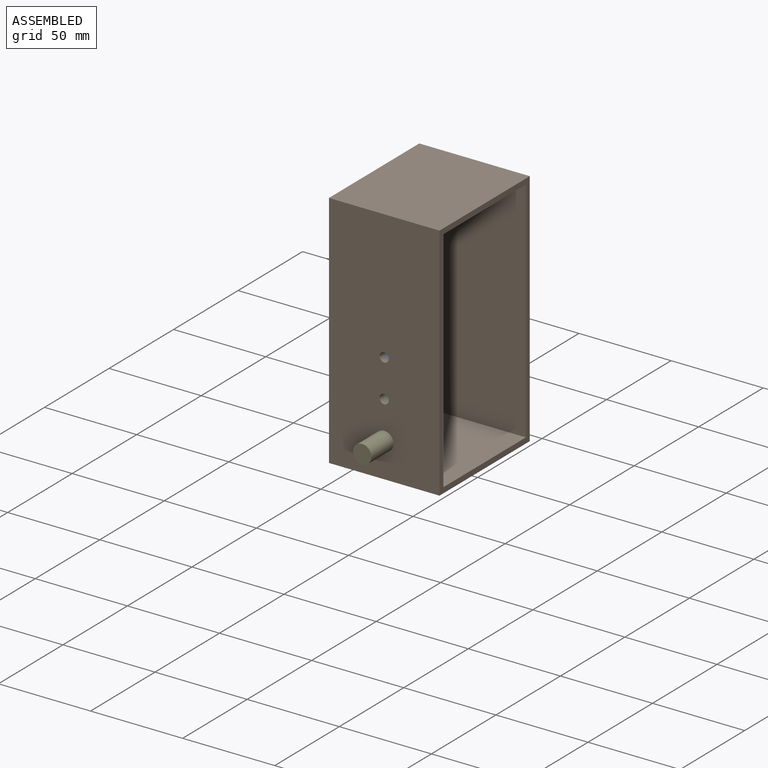
[diagram: assembled view]
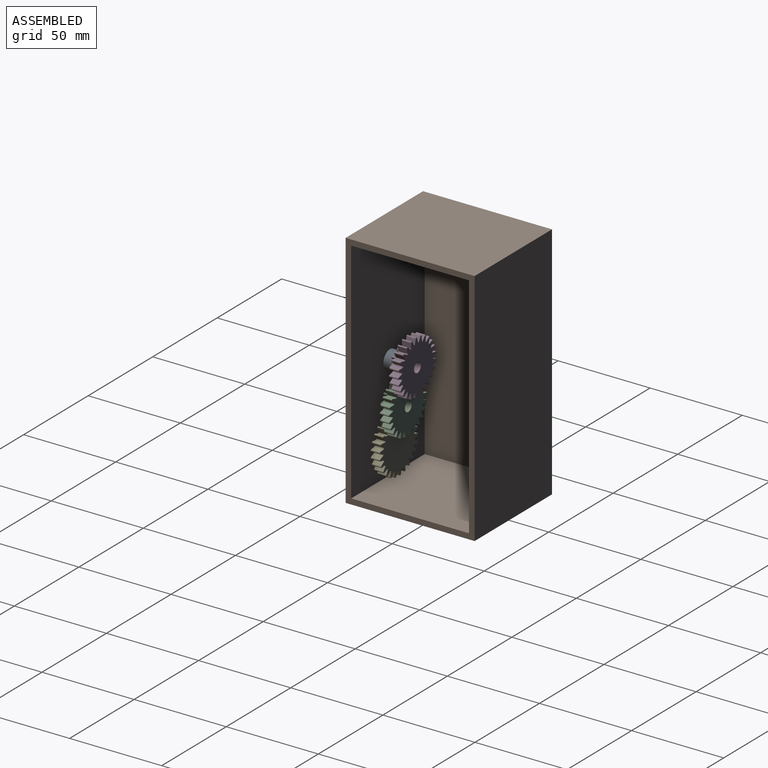
[diagram: assembled view, second angle]
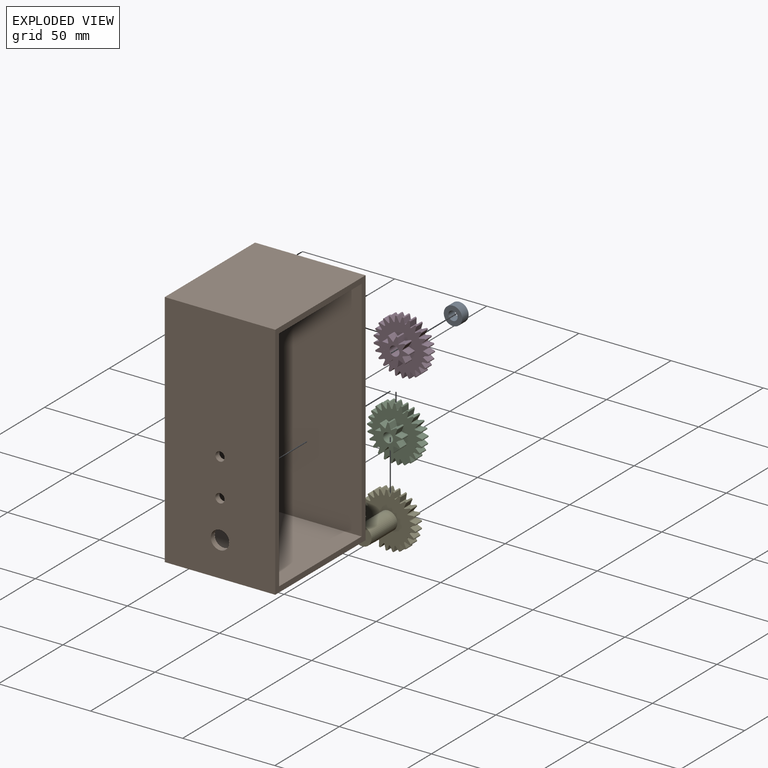
[diagram: exploded view]
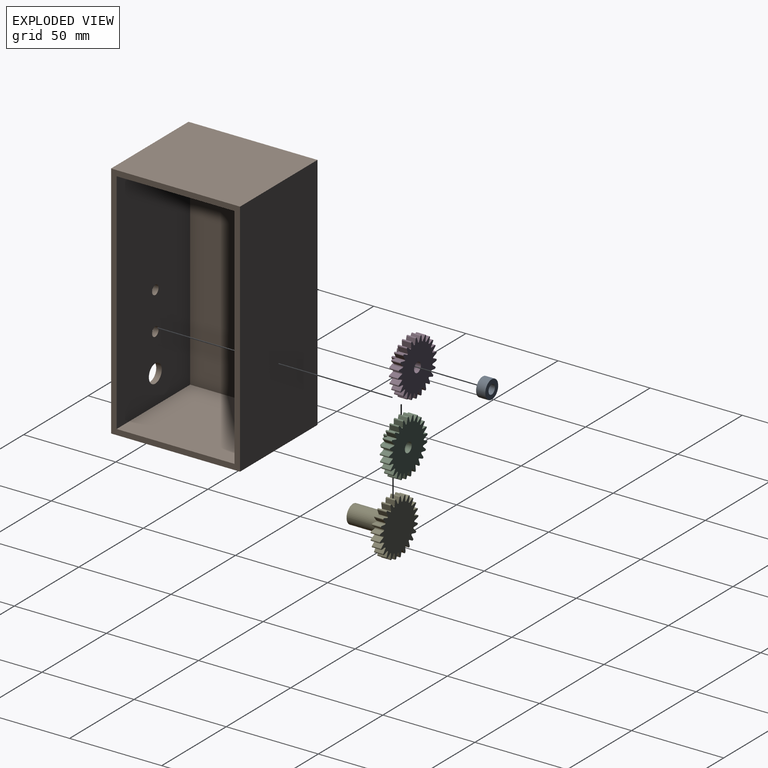
[diagram: exploded view, second angle]
ASSEMBLY  parts=5 mates=4
PART A: 4 faces, bbox 5x10x10 mm
  f0: cylinder r=2.5mm len=5mm, axis (-1,0,0), area 78.5mm2, adj f2,f3
  f1: cylinder r=5mm len=10mm, axis (-1,0,0), area 157.1mm2, adj f2,f3
  f2: plane 10x10mm, normal (1,0,0), area 58.9mm2, adj f0,f1
  f3: plane 10x10mm, normal (-1,0,0), area 58.9mm2, adj f0,f1
PART B: 14 faces, bbox 60x70x130 mm
  f0: plane 130x60mm, normal (0,-1,0), area 7682.2mm2, adj f1,f3,f4,f5,f11,f12,f13
  f1: plane 70x60mm, normal (0,0,-1), area 4200mm2, adj f0,f2,f4,f5
  f2: plane 130x60mm, normal (0,1,0), area 7800mm2, adj f1,f3,f4,f5
  f3: plane 70x60mm, normal (0,0,1), area 4200mm2, adj f0,f2,f4,f5
  f4: plane 130x70mm, normal (1,0,0), area 1164mm2, adj f0,f1,f2,f3,f6,f7,f8,f9
  f5: plane 130x70mm, normal (-1,0,0), area 9100mm2, adj f0,f1,f2,f3
  f6: plane 124x57mm, normal (0,1,0), area 6950.2mm2, adj f4,f7,f9,f10,f11,f12,f13
  f7: plane 64x57mm, normal (0,0,1), area 3648mm2, adj f4,f6,f8,f10
  f8: plane 124x57mm, normal (0,-1,0), area 7068mm2, adj f4,f7,f9,f10
  f9: plane 64x57mm, normal (0,0,-1), area 3648mm2, adj f4,f6,f8,f10
  f10: plane 124x64mm, normal (1,0,0), area 7936mm2, adj f6,f7,f8,f9
  f11: cylinder r=2.5mm len=5mm, axis (0,-1,0), area 47.1mm2, adj f0,f6
  f12: cylinder r=2.5mm len=5mm, axis (0,-1,0), area 47.1mm2, adj f0,f6
  f13: cylinder r=5mm len=10mm, axis (0,-1,0), area 94.2mm2, adj f0,f6
PART C: 140 faces, bbox 10x29.9x29.9 mm
  f0: plane 5x2.7mm, normal (0,-0.96,0.27), area 14.1mm2, adj f1,f99,f100,f101
  f1: cylinder r=12mm len=5mm, axis (-1,0,0), area 2.5mm2, adj f0,f2,f100,f101
  f2: plane 5x2.43mm, normal (0,0.86,0.5), area 14.1mm2, adj f1,f3,f100,f101
  f3: cylinder r=0.5mm len=5mm, axis (-1,0,0), area 6.5mm2, adj f2,f4,f100,f101
  f4: plane 5x2.81mm, normal (0,-1,0.03), area 14.1mm2, adj f3,f5,f100,f101
  f5: cylinder r=12mm len=5mm, axis (-1,0,0), area 2.5mm2, adj f4,f6,f100,f101
  f6: plane 5x2mm, normal (0,0.71,0.7), area 14.1mm2, adj f5,f7,f100,f101
  f7: cylinder r=0.5mm len=5mm, axis (-1,0,0), area 6.5mm2, adj f6,f8,f100,f101
  f8: plane 5x2.74mm, normal (0,-0.97,-0.22), area 14.1mm2, adj f7,f9,f100,f101
  f9: cylinder r=12mm len=5mm, axis (-1,0,0), area 2.5mm2, adj f8,f10,f100,f101
  f10: plane 5x2.41mm, normal (0,0.51,0.86), area 14.1mm2, adj f9,f11,f100,f101
  f11: cylinder r=0.5mm len=5mm, axis (-1,0,0), area 6.5mm2, adj f10,f12,f100,f101
  f12: plane 5x2.5mm, normal (0,-0.89,-0.46), area 14.1mm2, adj f11,f13,f100,f101
  f13: cylinder r=12mm len=5mm, axis (-1,0,0), area 2.5mm2, adj f12,f14,f100,f101
  f14: plane 5x2.7mm, normal (0,0.28,0.96), area 14.1mm2, adj f13,f15,f100,f101
  f15: cylinder r=0.5mm len=5mm, axis (-1,0,0), area 6.5mm2, adj f14,f16,f100,f101
  f16: plane 5x2.1mm, normal (0,-0.75,-0.66), area 14.1mm2, adj f15,f17,f100,f101
  f17: cylinder r=12mm len=5mm, axis (-1,0,0), area 2.5mm2, adj f16,f18,f100,f101
  f18: plane 5x2.81mm, normal (0,0.04,1), area 14.1mm2, adj f17,f19,f100,f101
  f19: cylinder r=0.5mm len=5mm, axis (-1,0,0), area 6.5mm2, adj f18,f20,f100,f101
  f20: plane 5x2.33mm, normal (0,-0.56,-0.83), area 14.1mm2, adj f19,f21,f100,f101
  f21: cylinder r=12mm len=5mm, axis (-1,0,0), area 2.5mm2, adj f20,f22,f100,f101
  f22: plane 5x2.75mm, normal (0,-0.21,0.98), area 14.1mm2, adj f21,f23,f100,f101
  f23: cylinder r=0.5mm len=5mm, axis (-1,0,0), area 6.5mm2, adj f22,f24,f100,f101
  f24: plane 5x2.65mm, normal (0,-0.33,-0.94), area 14.1mm2, adj f23,f25,f100,f101
  f25: cylinder r=12mm len=5mm, axis (-1,0,0), area 2.5mm2, adj f24,f26,f100,f101
  f26: plane 5x2.51mm, normal (0,-0.45,0.89), area 14.1mm2, adj f25,f27,f100,f101
  f27: cylinder r=0.5mm len=5mm, axis (-1,0,0), area 6.5mm2, adj f26,f28,f100,f101
  f28: plane 5x2.8mm, normal (0,-0.09,-1), area 14.1mm2, adj f27,f29,f100,f101
  f29: cylinder r=12mm len=5mm, axis (-1,0,0), area 2.5mm2, adj f28,f30,f100,f101
  f30: plane 5x2.12mm, normal (0,-0.66,0.75), area 14.1mm2, adj f29,f31,f100,f101
  f31: cylinder r=0.5mm len=5mm, axis (-1,0,0), area 6.5mm2, adj f30,f32,f100,f101
  f32: plane 5x2.77mm, normal (0,0.16,-0.99), area 14.1mm2, adj f31,f33,f100,f101
  f33: cylinder r=12mm len=5mm, axis (-1,0,0), area 2.5mm2, adj f32,f34,f100,f101
  f34: plane 5x2.32mm, normal (0,-0.82,0.57), area 14.1mm2, adj f33,f35,f100,f101
  f35: cylinder r=0.5mm len=5mm, axis (-1,0,0), area 6.5mm2, adj f34,f36,f100,f101
  f36: plane 5x2.57mm, normal (0,0.4,-0.92), area 14.1mm2, adj f35,f37,f100,f101
  f37: cylinder r=12mm len=5mm, axis (-1,0,0), area 2.5mm2, adj f36,f38,f100,f101
  f38: plane 5x2.64mm, normal (0,-0.94,0.34), area 14.1mm2, adj f37,f39,f100,f101
  f39: cylinder r=0.5mm len=5mm, axis (-1,0,0), area 6.5mm2, adj f38,f40,f100,f101
  f40: plane 5x2.21mm, normal (0,0.62,-0.79), area 14.1mm2, adj f39,f41,f100,f101
  f41: cylinder r=12mm len=5mm, axis (-1,0,0), area 2.5mm2, adj f40,f42,f100,f101
  f42: plane 5x2.8mm, normal (0,-1,0.1), area 14.1mm2, adj f41,f43,f100,f101
  f43: cylinder r=0.5mm len=5mm, axis (-1,0,0), area 6.5mm2, adj f42,f44,f100,f101
  f44: plane 5x2.23mm, normal (0,0.79,-0.61), area 14.1mm2, adj f43,f45,f100,f101
  f45: cylinder r=12mm len=5mm, axis (-1,0,0), area 2.5mm2, adj f44,f46,f100,f101
  f46: plane 5x2.78mm, normal (0,-0.99,-0.15), area 14.1mm2, adj f45,f47,f100,f101
  f47: cylinder r=0.5mm len=5mm, axis (-1,0,0), area 6.5mm2, adj f46,f48,f100,f101
  f48: plane 5x2.58mm, normal (0,0.92,-0.39), area 14.1mm2, adj f47,f49,f100,f101
  f49: cylinder r=12mm len=5mm, axis (-1,0,0), area 2.5mm2, adj f48,f50,f100,f101
  f50: plane 5x2.58mm, normal (0,-0.92,-0.39), area 14.1mm2, adj f49,f51,f100,f101
  f51: cylinder r=0.5mm len=5mm, axis (-1,0,0), area 6.5mm2, adj f50,f52,f100,f101
  f52: plane 5x2.78mm, normal (0,0.99,-0.15), area 14.1mm2, adj f51,f53,f100,f101
  f53: cylinder r=12mm len=5mm, axis (-1,0,0), area 2.5mm2, adj f52,f54,f100,f101
  f54: plane 5x2.23mm, normal (0,-0.79,-0.61), area 14.1mm2, adj f53,f55,f100,f101
  f55: cylinder r=0.5mm len=5mm, axis (-1,0,0), area 6.5mm2, adj f54,f56,f100,f101
  f56: plane 5x2.8mm, normal (0,1,0.1), area 14.1mm2, adj f55,f57,f100,f101
  f57: cylinder r=12mm len=5mm, axis (-1,0,0), area 2.5mm2, adj f56,f58,f100,f101
  f58: plane 5x2.21mm, normal (0,-0.62,-0.79), area 14.1mm2, adj f57,f59,f100,f101
  f59: cylinder r=0.5mm len=5mm, axis (-1,0,0), area 6.5mm2, adj f58,f60,f100,f101
  f60: plane 5x2.64mm, normal (0,0.94,0.34), area 14.1mm2, adj f59,f61,f100,f101
  f61: cylinder r=12mm len=5mm, axis (-1,0,0), area 2.5mm2, adj f60,f62,f100,f101
  f62: plane 5x2.57mm, normal (0,-0.4,-0.92), area 14.1mm2, adj f61,f63,f100,f101
  f63: cylinder r=0.5mm len=5mm, axis (-1,0,0), area 6.5mm2, adj f62,f64,f100,f101
  f64: plane 5x2.32mm, normal (0,0.82,0.57), area 14.1mm2, adj f63,f65,f100,f101
  f65: cylinder r=12mm len=5mm, axis (-1,0,0), area 2.5mm2, adj f64,f66,f100,f101
  f66: plane 5x2.77mm, normal (0,-0.16,-0.99), area 14.1mm2, adj f65,f67,f100,f101
  f67: cylinder r=0.5mm len=5mm, axis (-1,0,0), area 6.5mm2, adj f66,f68,f100,f101
  f68: plane 5x2.12mm, normal (0,0.66,0.75), area 14.1mm2, adj f67,f69,f100,f101
  f69: cylinder r=12mm len=5mm, axis (-1,0,0), area 2.5mm2, adj f68,f70,f100,f101
  f70: plane 5x2.8mm, normal (0,0.09,-1), area 14.1mm2, adj f69,f71,f100,f101
  f71: cylinder r=0.5mm len=5mm, axis (-1,0,0), area 6.5mm2, adj f70,f72,f100,f101
  f72: plane 5x2.51mm, normal (0,0.45,0.89), area 14.1mm2, adj f71,f73,f100,f101
  f73: cylinder r=12mm len=5mm, axis (-1,0,0), area 2.5mm2, adj f72,f74,f100,f101
  f74: plane 5x2.65mm, normal (0,0.33,-0.94), area 14.1mm2, adj f73,f75,f100,f101
  f75: cylinder r=0.5mm len=5mm, axis (-1,0,0), area 6.5mm2, adj f74,f76,f100,f101
  f76: plane 5x2.75mm, normal (0,0.21,0.98), area 14.1mm2, adj f75,f77,f100,f101
  f77: cylinder r=12mm len=5mm, axis (-1,0,0), area 2.5mm2, adj f76,f78,f100,f101
  f78: plane 5x2.33mm, normal (0,0.56,-0.83), area 14.1mm2, adj f77,f79,f100,f101
  f79: cylinder r=0.5mm len=5mm, axis (-1,0,0), area 6.5mm2, adj f78,f80,f100,f101
  f80: plane 5x2.81mm, normal (0,-0.04,1), area 14.1mm2, adj f79,f81,f100,f101
  f81: cylinder r=12mm len=5mm, axis (-1,0,0), area 2.5mm2, adj f80,f82,f100,f101
  f82: plane 5x2.1mm, normal (0,0.75,-0.66), area 14.1mm2, adj f81,f83,f100,f101
  f83: cylinder r=0.5mm len=5mm, axis (-1,0,0), area 6.5mm2, adj f82,f84,f100,f101
  f84: plane 5x2.7mm, normal (0,-0.28,0.96), area 14.1mm2, adj f83,f85,f100,f101
  f85: cylinder r=12mm len=5mm, axis (-1,0,0), area 2.5mm2, adj f84,f86,f100,f101
  f86: plane 5x2.5mm, normal (0,0.89,-0.46), area 14.1mm2, adj f85,f87,f100,f101
  f87: cylinder r=0.5mm len=5mm, axis (-1,0,0), area 6.5mm2, adj f86,f88,f100,f101
  f88: plane 5x2.41mm, normal (0,-0.51,0.86), area 14.1mm2, adj f87,f89,f100,f101
  f89: cylinder r=12mm len=5mm, axis (-1,0,0), area 2.5mm2, adj f88,f90,f100,f101
  f90: plane 5x2.74mm, normal (0,0.97,-0.22), area 14.1mm2, adj f89,f91,f100,f101
  f91: cylinder r=0.5mm len=5mm, axis (-1,0,0), area 6.5mm2, adj f90,f92,f100,f101
  f92: plane 5x2mm, normal (0,-0.71,0.7), area 14.1mm2, adj f91,f93,f100,f101
  f93: cylinder r=12mm len=5mm, axis (-1,0,0), area 2.5mm2, adj f92,f94,f100,f101
  f94: plane 5x2.81mm, normal (0,1,0.03), area 14.1mm2, adj f93,f95,f100,f101
  f95: cylinder r=0.5mm len=5mm, axis (-1,0,0), area 6.5mm2, adj f94,f96,f100,f101
  f96: plane 5x2.43mm, normal (0,-0.86,0.5), area 14.1mm2, adj f95,f97,f100,f101
  f97: cylinder r=12mm len=5mm, axis (-1,0,0), area 2.5mm2, adj f96,f98,f100,f101
  f98: plane 5x2.7mm, normal (0,0.96,0.27), area 14.1mm2, adj f97,f99,f100,f101
  f99: cylinder r=0.5mm len=5mm, axis (-1,0,0), area 6.5mm2, adj f0,f98,f100,f101
  f100: plane 29.94x29.89mm, normal (1,0,0), area 462.3mm2, adj f0,f1,f2,f3,f4,f5,f6,f7
  f101: plane 29.94x29.89mm, normal (-1,0,0), area 550.9mm2, adj f0,f1,f2,f3,f4,f5,f6,f7
  f102: plane 5x2.68mm, normal (0,-0.47,-0.88), area 15.2mm2, adj f100,f103,f137,f138
  f103: cylinder r=4.5mm len=5mm, axis (-1,0,0), area 1.3mm2, adj f100,f102,f104,f138
  f104: plane 5x2.25mm, normal (0,-0.74,0.67), area 15.2mm2, adj f100,f103,f105,f138
  f105: cylinder r=0.5mm len=5mm, axis (-1,0,0), area 6.3mm2, adj f100,f104,f106,f138
  f106: plane 5x2.96mm, normal (0,0.21,-0.98), area 15.2mm2, adj f100,f105,f107,f138
  f107: cylinder r=4.5mm len=5mm, axis (-1,0,0), area 1.3mm2, adj f100,f106,f108,f138
  f108: plane 5x3.03mm, normal (0,-1,0.03), area 15.2mm2, adj f100,f107,f109,f138
  f109: cylinder r=0.5mm len=5mm, axis (-1,0,0), area 6.3mm2, adj f100,f108,f110,f138
  f110: plane 5x2.39mm, normal (0,0.79,-0.62), area 15.2mm2, adj f100,f109,f111,f138
  f111: cylinder r=4.5mm len=5mm, axis (-1,0,0), area 1.3mm2, adj f100,f110,f112,f138
  f112: plane 5x2.39mm, normal (0,-0.79,-0.62), area 15.2mm2, adj f100,f111,f113,f138
  f113: cylinder r=0.5mm len=5mm, axis (-1,0,0), area 6.3mm2, adj f100,f112,f114,f138
  f114: plane 5x3.03mm, normal (0,1,0.03), area 15.2mm2, adj f100,f113,f115,f138
  f115: cylinder r=4.5mm len=5mm, axis (-1,0,0), area 1.3mm2, adj f100,f114,f116,f138
  f116: plane 5x2.96mm, normal (0,-0.21,-0.98), area 15.2mm2, adj f100,f115,f117,f138
  f117: cylinder r=0.5mm len=5mm, axis (-1,0,0), area 6.3mm2, adj f100,f116,f118,f138
  f118: plane 5x2.25mm, normal (0,0.74,0.67), area 15.2mm2, adj f100,f117,f119,f138
  f119: cylinder r=4.5mm len=5mm, axis (-1,0,0), area 1.3mm2, adj f100,f118,f120,f138
  f120: plane 5x2.68mm, normal (0,0.47,-0.88), area 15.2mm2, adj f100,f119,f121,f138
  f121: cylinder r=0.5mm len=5mm, axis (-1,0,0), area 6.3mm2, adj f100,f120,f122,f138
  f122: plane 5x3mm, normal (0,0.14,0.99), area 15.2mm2, adj f100,f121,f123,f138
  f123: cylinder r=4.5mm len=5mm, axis (-1,0,0), area 1.3mm2, adj f100,f122,f124,f138
  f124: plane 5x2.81mm, normal (0,0.93,-0.37), area 15.2mm2, adj f100,f123,f125,f138
  f125: cylinder r=0.5mm len=5mm, axis (-1,0,0), area 6.3mm2, adj f100,f124,f126,f138
  f126: plane 5x2.57mm, normal (0,-0.53,0.85), area 15.2mm2, adj f100,f125,f127,f138
  f127: cylinder r=4.5mm len=5mm, axis (-1,0,0), area 1.3mm2, adj f100,f126,f128,f138
  f128: plane 5x2.88mm, normal (0,0.95,0.31), area 15.2mm2, adj f100,f127,f129,f138
  f129: cylinder r=0.5mm len=5mm, axis (-1,0,0), area 6.3mm2, adj f100,f128,f130,f138
  f130: plane 5x2.88mm, normal (0,-0.95,0.31), area 15.2mm2, adj f100,f129,f131,f138
  f131: cylinder r=4.5mm len=5mm, axis (-1,0,0), area 1.3mm2, adj f100,f130,f132,f138
  f132: plane 5x2.57mm, normal (0,0.53,0.85), area 15.2mm2, adj f100,f131,f133,f138
  f133: cylinder r=0.5mm len=5mm, axis (-1,0,0), area 6.3mm2, adj f100,f132,f134,f138
  f134: plane 5x2.81mm, normal (0,-0.93,-0.37), area 15.2mm2, adj f100,f133,f135,f138
  f135: cylinder r=4.5mm len=5mm, axis (-1,0,0), area 1.3mm2, adj f100,f134,f136,f138
  f136: plane 5x3mm, normal (0,-0.14,0.99), area 15.2mm2, adj f100,f135,f137,f138
  f137: cylinder r=0.5mm len=5mm, axis (-1,0,0), area 6.3mm2, adj f100,f102,f136,f138
  f138: plane 14.79x14.58mm, normal (1,0,0), area 88.6mm2, adj f102,f103,f104,f105,f106,f107,f108,f109
  f139: cylinder r=2.66mm len=10mm, axis (1,0,0), area 167.4mm2, adj f101,f138
PART D: same geometry as C
PART E: 104 faces, bbox 25x29.9x29.9 mm
  f0: plane 5x2.7mm, normal (0,-0.96,0.27), area 14.1mm2, adj f1,f99,f100,f101
  f1: cylinder r=12mm len=5mm, axis (-1,0,0), area 2.5mm2, adj f0,f2,f100,f101
  f2: plane 5x2.43mm, normal (0,0.86,0.5), area 14.1mm2, adj f1,f3,f100,f101
  f3: cylinder r=0.5mm len=5mm, axis (-1,0,0), area 6.5mm2, adj f2,f4,f100,f101
  f4: plane 5x2.81mm, normal (0,-1,0.03), area 14.1mm2, adj f3,f5,f100,f101
  f5: cylinder r=12mm len=5mm, axis (-1,0,0), area 2.5mm2, adj f4,f6,f100,f101
  f6: plane 5x2mm, normal (0,0.71,0.7), area 14.1mm2, adj f5,f7,f100,f101
  f7: cylinder r=0.5mm len=5mm, axis (-1,0,0), area 6.5mm2, adj f6,f8,f100,f101
  f8: plane 5x2.74mm, normal (0,-0.97,-0.22), area 14.1mm2, adj f7,f9,f100,f101
  f9: cylinder r=12mm len=5mm, axis (-1,0,0), area 2.5mm2, adj f8,f10,f100,f101
  f10: plane 5x2.41mm, normal (0,0.51,0.86), area 14.1mm2, adj f9,f11,f100,f101
  f11: cylinder r=0.5mm len=5mm, axis (-1,0,0), area 6.5mm2, adj f10,f12,f100,f101
  f12: plane 5x2.5mm, normal (0,-0.89,-0.46), area 14.1mm2, adj f11,f13,f100,f101
  f13: cylinder r=12mm len=5mm, axis (-1,0,0), area 2.5mm2, adj f12,f14,f100,f101
  f14: plane 5x2.7mm, normal (0,0.28,0.96), area 14.1mm2, adj f13,f15,f100,f101
  f15: cylinder r=0.5mm len=5mm, axis (-1,0,0), area 6.5mm2, adj f14,f16,f100,f101
  f16: plane 5x2.1mm, normal (0,-0.75,-0.66), area 14.1mm2, adj f15,f17,f100,f101
  f17: cylinder r=12mm len=5mm, axis (-1,0,0), area 2.5mm2, adj f16,f18,f100,f101
  f18: plane 5x2.81mm, normal (0,0.04,1), area 14.1mm2, adj f17,f19,f100,f101
  f19: cylinder r=0.5mm len=5mm, axis (-1,0,0), area 6.5mm2, adj f18,f20,f100,f101
  f20: plane 5x2.33mm, normal (0,-0.56,-0.83), area 14.1mm2, adj f19,f21,f100,f101
  f21: cylinder r=12mm len=5mm, axis (-1,0,0), area 2.5mm2, adj f20,f22,f100,f101
  f22: plane 5x2.75mm, normal (0,-0.21,0.98), area 14.1mm2, adj f21,f23,f100,f101
  f23: cylinder r=0.5mm len=5mm, axis (-1,0,0), area 6.5mm2, adj f22,f24,f100,f101
  f24: plane 5x2.65mm, normal (0,-0.33,-0.94), area 14.1mm2, adj f23,f25,f100,f101
  f25: cylinder r=12mm len=5mm, axis (-1,0,0), area 2.5mm2, adj f24,f26,f100,f101
  f26: plane 5x2.51mm, normal (0,-0.45,0.89), area 14.1mm2, adj f25,f27,f100,f101
  f27: cylinder r=0.5mm len=5mm, axis (-1,0,0), area 6.5mm2, adj f26,f28,f100,f101
  f28: plane 5x2.8mm, normal (0,-0.09,-1), area 14.1mm2, adj f27,f29,f100,f101
  f29: cylinder r=12mm len=5mm, axis (-1,0,0), area 2.5mm2, adj f28,f30,f100,f101
  f30: plane 5x2.12mm, normal (0,-0.66,0.75), area 14.1mm2, adj f29,f31,f100,f101
  f31: cylinder r=0.5mm len=5mm, axis (-1,0,0), area 6.5mm2, adj f30,f32,f100,f101
  f32: plane 5x2.77mm, normal (0,0.16,-0.99), area 14.1mm2, adj f31,f33,f100,f101
  f33: cylinder r=12mm len=5mm, axis (-1,0,0), area 2.5mm2, adj f32,f34,f100,f101
  f34: plane 5x2.32mm, normal (0,-0.82,0.57), area 14.1mm2, adj f33,f35,f100,f101
  f35: cylinder r=0.5mm len=5mm, axis (-1,0,0), area 6.5mm2, adj f34,f36,f100,f101
  f36: plane 5x2.57mm, normal (0,0.4,-0.92), area 14.1mm2, adj f35,f37,f100,f101
  f37: cylinder r=12mm len=5mm, axis (-1,0,0), area 2.5mm2, adj f36,f38,f100,f101
  f38: plane 5x2.64mm, normal (0,-0.94,0.34), area 14.1mm2, adj f37,f39,f100,f101
  f39: cylinder r=0.5mm len=5mm, axis (-1,0,0), area 6.5mm2, adj f38,f40,f100,f101
  f40: plane 5x2.21mm, normal (0,0.62,-0.79), area 14.1mm2, adj f39,f41,f100,f101
  f41: cylinder r=12mm len=5mm, axis (-1,0,0), area 2.5mm2, adj f40,f42,f100,f101
  f42: plane 5x2.8mm, normal (0,-1,0.1), area 14.1mm2, adj f41,f43,f100,f101
  f43: cylinder r=0.5mm len=5mm, axis (-1,0,0), area 6.5mm2, adj f42,f44,f100,f101
  f44: plane 5x2.23mm, normal (0,0.79,-0.61), area 14.1mm2, adj f43,f45,f100,f101
  f45: cylinder r=12mm len=5mm, axis (-1,0,0), area 2.5mm2, adj f44,f46,f100,f101
  f46: plane 5x2.78mm, normal (0,-0.99,-0.15), area 14.1mm2, adj f45,f47,f100,f101
  f47: cylinder r=0.5mm len=5mm, axis (-1,0,0), area 6.5mm2, adj f46,f48,f100,f101
  f48: plane 5x2.58mm, normal (0,0.92,-0.39), area 14.1mm2, adj f47,f49,f100,f101
  f49: cylinder r=12mm len=5mm, axis (-1,0,0), area 2.5mm2, adj f48,f50,f100,f101
  f50: plane 5x2.58mm, normal (0,-0.92,-0.39), area 14.1mm2, adj f49,f51,f100,f101
  f51: cylinder r=0.5mm len=5mm, axis (-1,0,0), area 6.5mm2, adj f50,f52,f100,f101
  f52: plane 5x2.78mm, normal (0,0.99,-0.15), area 14.1mm2, adj f51,f53,f100,f101
  f53: cylinder r=12mm len=5mm, axis (-1,0,0), area 2.5mm2, adj f52,f54,f100,f101
  f54: plane 5x2.23mm, normal (0,-0.79,-0.61), area 14.1mm2, adj f53,f55,f100,f101
  f55: cylinder r=0.5mm len=5mm, axis (-1,0,0), area 6.5mm2, adj f54,f56,f100,f101
  f56: plane 5x2.8mm, normal (0,1,0.1), area 14.1mm2, adj f55,f57,f100,f101
  f57: cylinder r=12mm len=5mm, axis (-1,0,0), area 2.5mm2, adj f56,f58,f100,f101
  f58: plane 5x2.21mm, normal (0,-0.62,-0.79), area 14.1mm2, adj f57,f59,f100,f101
  f59: cylinder r=0.5mm len=5mm, axis (-1,0,0), area 6.5mm2, adj f58,f60,f100,f101
  f60: plane 5x2.64mm, normal (0,0.94,0.34), area 14.1mm2, adj f59,f61,f100,f101
  f61: cylinder r=12mm len=5mm, axis (-1,0,0), area 2.5mm2, adj f60,f62,f100,f101
  f62: plane 5x2.57mm, normal (0,-0.4,-0.92), area 14.1mm2, adj f61,f63,f100,f101
  f63: cylinder r=0.5mm len=5mm, axis (-1,0,0), area 6.5mm2, adj f62,f64,f100,f101
  f64: plane 5x2.32mm, normal (0,0.82,0.57), area 14.1mm2, adj f63,f65,f100,f101
  f65: cylinder r=12mm len=5mm, axis (-1,0,0), area 2.5mm2, adj f64,f66,f100,f101
  f66: plane 5x2.77mm, normal (0,-0.16,-0.99), area 14.1mm2, adj f65,f67,f100,f101
  f67: cylinder r=0.5mm len=5mm, axis (-1,0,0), area 6.5mm2, adj f66,f68,f100,f101
  f68: plane 5x2.12mm, normal (0,0.66,0.75), area 14.1mm2, adj f67,f69,f100,f101
  f69: cylinder r=12mm len=5mm, axis (-1,0,0), area 2.5mm2, adj f68,f70,f100,f101
  f70: plane 5x2.8mm, normal (0,0.09,-1), area 14.1mm2, adj f69,f71,f100,f101
  f71: cylinder r=0.5mm len=5mm, axis (-1,0,0), area 6.5mm2, adj f70,f72,f100,f101
  f72: plane 5x2.51mm, normal (0,0.45,0.89), area 14.1mm2, adj f71,f73,f100,f101
  f73: cylinder r=12mm len=5mm, axis (-1,0,0), area 2.5mm2, adj f72,f74,f100,f101
  f74: plane 5x2.65mm, normal (0,0.33,-0.94), area 14.1mm2, adj f73,f75,f100,f101
  f75: cylinder r=0.5mm len=5mm, axis (-1,0,0), area 6.5mm2, adj f74,f76,f100,f101
  f76: plane 5x2.75mm, normal (0,0.21,0.98), area 14.1mm2, adj f75,f77,f100,f101
  f77: cylinder r=12mm len=5mm, axis (-1,0,0), area 2.5mm2, adj f76,f78,f100,f101
  f78: plane 5x2.33mm, normal (0,0.56,-0.83), area 14.1mm2, adj f77,f79,f100,f101
  f79: cylinder r=0.5mm len=5mm, axis (-1,0,0), area 6.5mm2, adj f78,f80,f100,f101
  f80: plane 5x2.81mm, normal (0,-0.04,1), area 14.1mm2, adj f79,f81,f100,f101
  f81: cylinder r=12mm len=5mm, axis (-1,0,0), area 2.5mm2, adj f80,f82,f100,f101
  f82: plane 5x2.1mm, normal (0,0.75,-0.66), area 14.1mm2, adj f81,f83,f100,f101
  f83: cylinder r=0.5mm len=5mm, axis (-1,0,0), area 6.5mm2, adj f82,f84,f100,f101
  f84: plane 5x2.7mm, normal (0,-0.28,0.96), area 14.1mm2, adj f83,f85,f100,f101
  f85: cylinder r=12mm len=5mm, axis (-1,0,0), area 2.5mm2, adj f84,f86,f100,f101
  f86: plane 5x2.5mm, normal (0,0.89,-0.46), area 14.1mm2, adj f85,f87,f100,f101
  f87: cylinder r=0.5mm len=5mm, axis (-1,0,0), area 6.5mm2, adj f86,f88,f100,f101
  f88: plane 5x2.41mm, normal (0,-0.51,0.86), area 14.1mm2, adj f87,f89,f100,f101
  f89: cylinder r=12mm len=5mm, axis (-1,0,0), area 2.5mm2, adj f88,f90,f100,f101
  f90: plane 5x2.74mm, normal (0,0.97,-0.22), area 14.1mm2, adj f89,f91,f100,f101
  f91: cylinder r=0.5mm len=5mm, axis (-1,0,0), area 6.5mm2, adj f90,f92,f100,f101
  f92: plane 5x2mm, normal (0,-0.71,0.7), area 14.1mm2, adj f91,f93,f100,f101
  f93: cylinder r=12mm len=5mm, axis (-1,0,0), area 2.5mm2, adj f92,f94,f100,f101
  f94: plane 5x2.81mm, normal (0,1,0.03), area 14.1mm2, adj f93,f95,f100,f101
  f95: cylinder r=0.5mm len=5mm, axis (-1,0,0), area 6.5mm2, adj f94,f96,f100,f101
  f96: plane 5x2.43mm, normal (0,-0.86,0.5), area 14.1mm2, adj f95,f97,f100,f101
  f97: cylinder r=12mm len=5mm, axis (-1,0,0), area 2.5mm2, adj f96,f98,f100,f101
  f98: plane 5x2.7mm, normal (0,0.96,0.27), area 14.1mm2, adj f97,f99,f100,f101
  f99: cylinder r=0.5mm len=5mm, axis (-1,0,0), area 6.5mm2, adj f0,f98,f100,f101
  f100: plane 29.94x29.89mm, normal (1,0,0), area 494.6mm2, adj f0,f1,f2,f3,f4,f5,f6,f7
  f101: plane 29.94x29.89mm, normal (-1,0,0), area 573.2mm2, adj f0,f1,f2,f3,f4,f5,f6,f7
  f102: cylinder r=5mm len=20mm, axis (-1,0,0), area 628.3mm2, adj f100,f103
  f103: plane 10x10mm, normal (1,0,0), area 78.5mm2, adj f102
PLACE A rot(axis=(0.58,0.58,0.58),120deg) t=(14.98,9.29,70.05)mm
PLACE B t=(-15.02,11.26,19.02)mm
PLACE C rot(axis=(0,0,-1),90deg) t=(14.98,19.29,49.55)mm
PLACE D rot(axis=(-0.58,0.58,-0.58),120deg) t=(14.98,24.29,70.05)mm
PLACE E rot(axis=(0.58,-0.58,-0.58),120deg) t=(14.98,14.29,29.05)mm
MATE pin_slot D.f1 <-> A.f0  axis (0,-1,0) through (14.98,14.29,70.05)mm
MATE pin_slot C.f1 <-> B.f12  axis (0,-1,0) through (14.98,9.29,49.55)mm
MATE revolute E.f1 <-> B.f13  axis (0,1,0) through (14.98,9.29,29.05)mm
MATE pin_slot A.f0 <-> B.f11  axis (0,-1,0) through (14.98,9.29,70.05)mm
